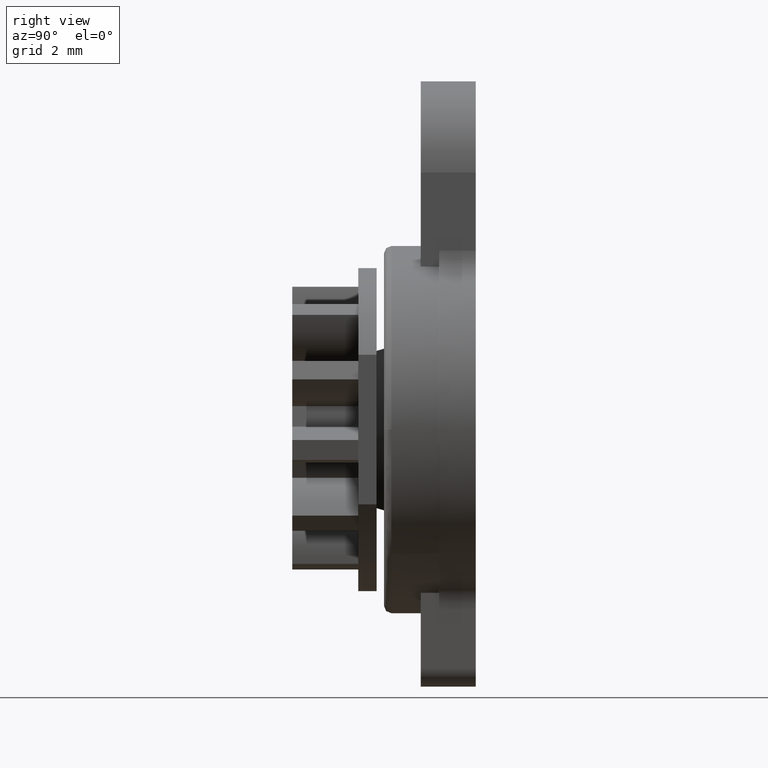
[diagram: clean part render]
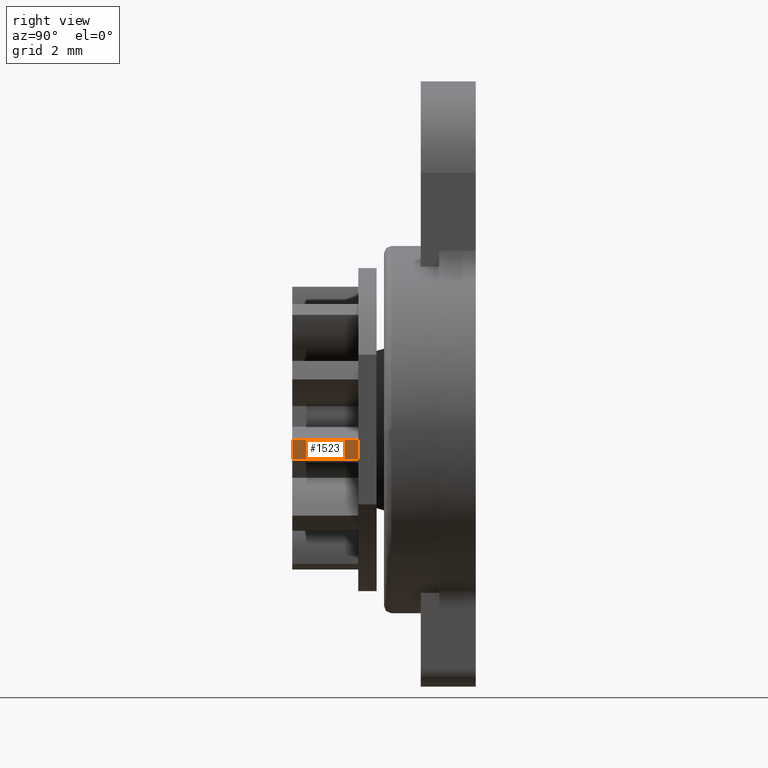
[diagram: same view with one face highlighted and labeled with its STEP entity id]
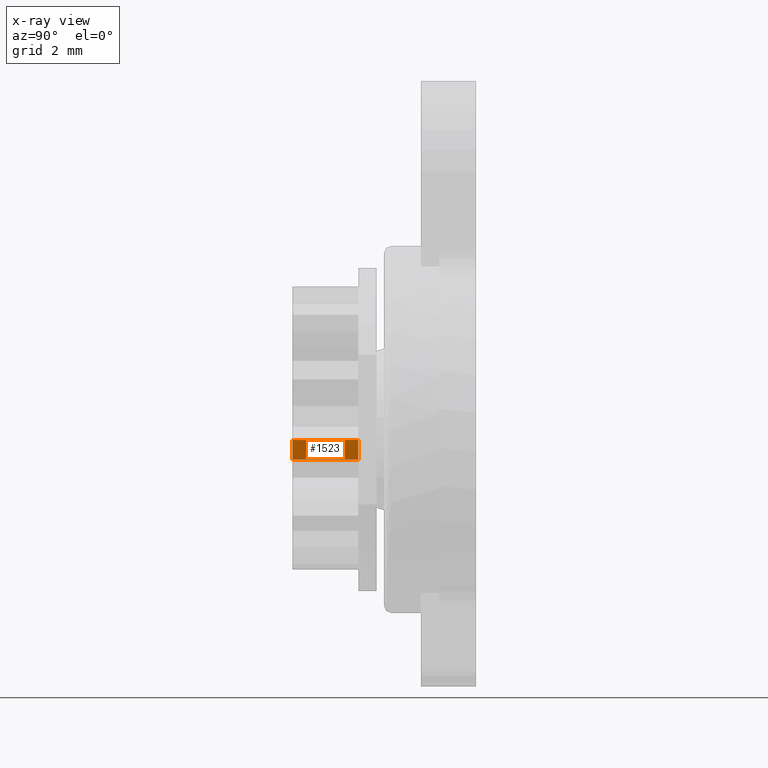
[diagram: x-ray of the same camera — body ghosted, the highlighted face saturated]
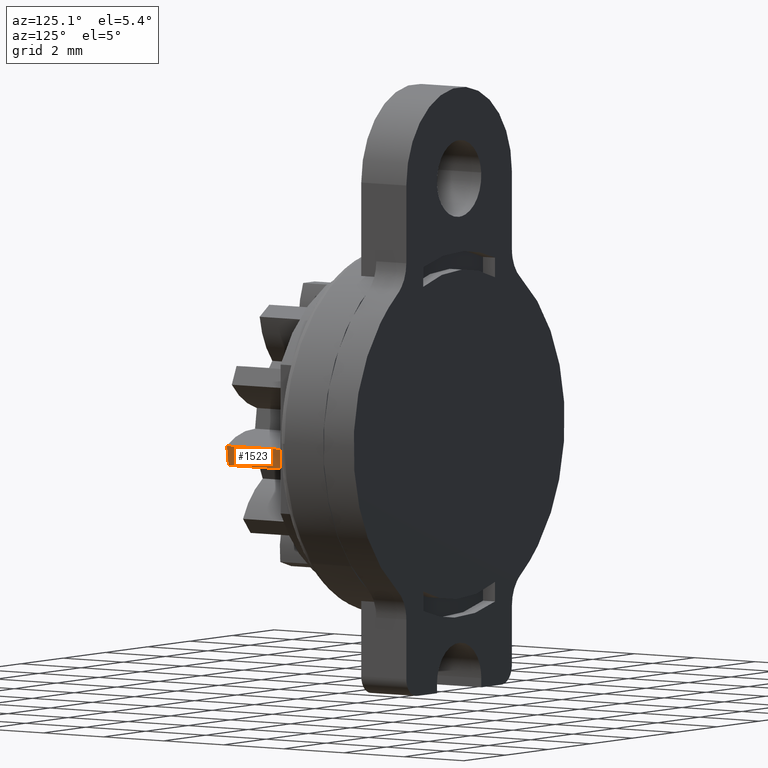
[diagram: same view with one face highlighted and labeled with its STEP entity id]
A machine part, right view. The second image highlights one B-rep face of the part: STEP entity #1523.
The next image is the same camera in x-ray: the body ghosted, the highlighted face saturated — about 0% of this face is hidden behind the body in this view.
A second angle (auxiliary view) of the same face is appended — the face is thin or edge-on in the first view.
In plain terms, the highlighted face is a freeform B-spline surface patch.
Its self-contained STEP definition (entity closure, byte-faithful):
#848=CARTESIAN_POINT('',(3.812183327603870,-5.0,-0.822957032134209));
#849=VERTEX_POINT('',#848);
#863=CARTESIAN_POINT('',(3.889616903634106,-5.0,-0.284394695737951));
#864=VERTEX_POINT('',#863);
#865=CARTESIAN_POINT('',(3.812183327603869,-5.0,-0.822957032134209));
#866=CARTESIAN_POINT('',(3.869730089227506,-5.0,-0.556383205490672));
#867=CARTESIAN_POINT('',(3.889616903634106,-5.0,-0.284394695737951));
#875=(BOUNDED_CURVE()B_SPLINE_CURVE(2,(#865,#866,#867),.UNSPECIFIED.,.F.,.U.)CURVE()GEOMETRIC_REPRESENTATION_ITEM()QUASI_UNIFORM_CURVE()RATIONAL_B_SPLINE_CURVE((1.0,0.997564050259824,1.0))REPRESENTATION_ITEM(''));
#876=EDGE_CURVE('',#849,#864,#875,.T.);
#1460=CARTESIAN_POINT('',(3.889616903634106,-3.200000000000090,-0.284394695737951));
#1461=VERTEX_POINT('',#1460);
#1477=CARTESIAN_POINT('',(3.889616903634106,-5.0,-0.284394695737951));
#1478=CARTESIAN_POINT('',(3.889616903634106,-3.200000000000090,-0.284394695737951));
#1479=QUASI_UNIFORM_CURVE('',1,(#1477,#1478),.UNSPECIFIED.,.F.,.U.);
#1480=EDGE_CURVE('',#864,#1461,#1479,.T.);
#1485=CARTESIAN_POINT('',(3.806358531171752,-5.044999999999999,-0.849490866446524));
#1486=CARTESIAN_POINT('',(3.806358531171752,-3.153875000000093,-0.849490866446524));
#1487=CARTESIAN_POINT('',(3.871711737249063,-5.044999999999999,-0.556659308960373));
#1488=CARTESIAN_POINT('',(3.871711737249063,-3.153875000000092,-0.556659308960373));
#1489=CARTESIAN_POINT('',(3.891504645345314,-5.044999999999999,-0.257277273104109));
#1490=CARTESIAN_POINT('',(3.891504645345314,-3.153875000000092,-0.257277273104109));
#1498=(BOUNDED_SURFACE()B_SPLINE_SURFACE(1,2,((#1485,#1487,#1489),(#1486,#1488,#1490)),.UNSPECIFIED.,.F.,.F.,.U.)B_SPLINE_SURFACE_WITH_KNOTS((2,2),(3,3),(0.0,1.0),(0.091866337780654,0.824774450536072),.UNSPECIFIED.)GEOMETRIC_REPRESENTATION_ITEM()RATIONAL_B_SPLINE_SURFACE(((0.999085957274604,0.995808686962137,0.998416591586327),(0.999085957274604,0.995808686962137,0.998416591586327)))REPRESENTATION_ITEM('')SURFACE());
#1499=CARTESIAN_POINT('',(3.812183327603870,-3.200000000000090,-0.822957032134209));
#1500=VERTEX_POINT('',#1499);
#1501=CARTESIAN_POINT('',(3.812183327603869,-3.200000000000090,-0.822957032134209));
#1502=CARTESIAN_POINT('',(3.869730089227506,-3.200000000000090,-0.556383205490672));
#1503=CARTESIAN_POINT('',(3.889616903634106,-3.200000000000090,-0.284394695737951));
#1511=(BOUNDED_CURVE()B_SPLINE_CURVE(2,(#1501,#1502,#1503),.UNSPECIFIED.,.F.,.U.)CURVE()GEOMETRIC_REPRESENTATION_ITEM()QUASI_UNIFORM_CURVE()RATIONAL_B_SPLINE_CURVE((1.0,0.997564050259824,1.0))REPRESENTATION_ITEM(''));
#1512=EDGE_CURVE('',#1500,#1461,#1511,.T.);
#1513=ORIENTED_EDGE('',*,*,#1512,.T.);
#1514=ORIENTED_EDGE('',*,*,#1480,.F.);
#1515=ORIENTED_EDGE('',*,*,#876,.F.);
#1516=CARTESIAN_POINT('',(3.812183327603870,-5.0,-0.822957032134209));
#1517=CARTESIAN_POINT('',(3.812183327603870,-3.200000000000090,-0.822957032134209));
#1518=QUASI_UNIFORM_CURVE('',1,(#1516,#1517),.UNSPECIFIED.,.F.,.U.);
#1519=EDGE_CURVE('',#849,#1500,#1518,.T.);
#1520=ORIENTED_EDGE('',*,*,#1519,.T.);
#1521=EDGE_LOOP('',(#1513,#1514,#1515,#1520));
#1522=FACE_OUTER_BOUND('',#1521,.T.);
#1523=ADVANCED_FACE('',(#1522),#1498,.T.);